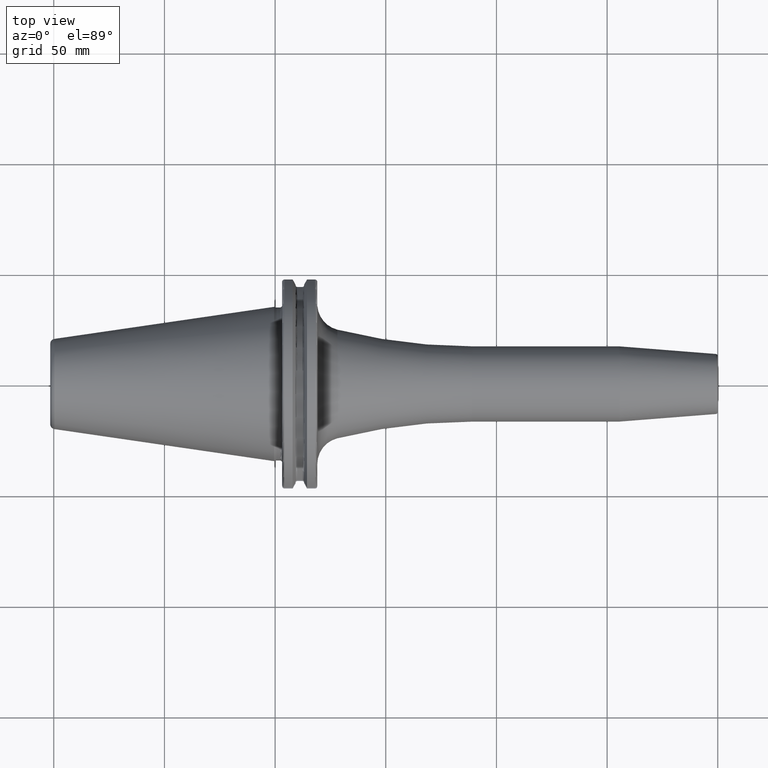
[diagram: clean part render]
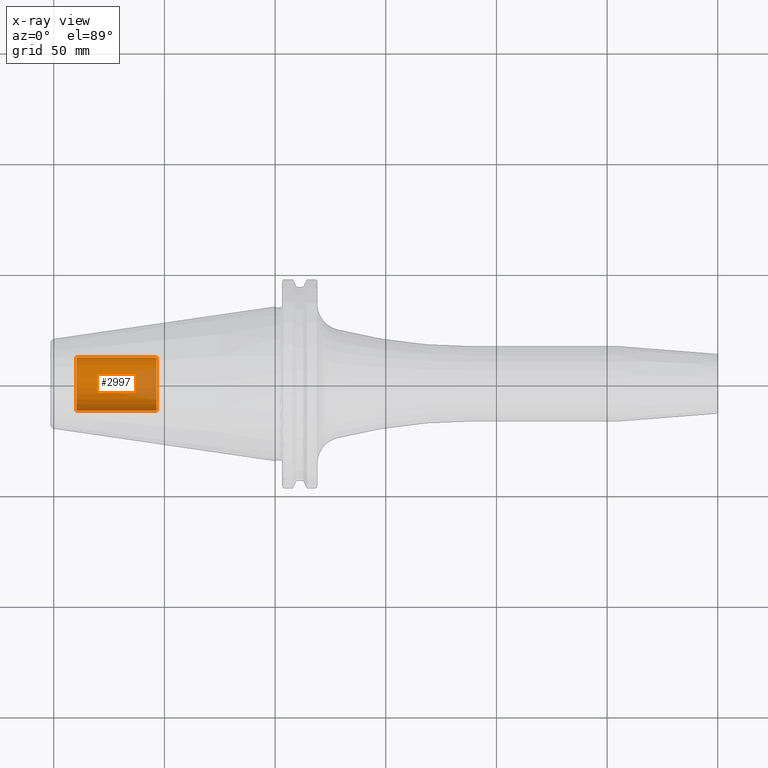
[diagram: x-ray — body ghosted, one internal face saturated and labeled with its STEP entity id]
A machine part, top view, then the same camera in x-ray: the body is ghosted and one INTERNAL B-rep face — a face not visible from any outside direction — is saturated and labeled: STEP entity #2997.
In plain terms, the highlighted cylindrical surface (edge-blend (fillet) strip) has radius 12.0032 mm, axis along (1, 0, 0).
Its self-contained STEP definition (entity closure, byte-faithful):
#2932=CARTESIAN_POINT('',(-8.985E1,0.E0,0.E0));
#2933=DIRECTION('',(-1.E0,0.E0,0.E0));
#2934=DIRECTION('',(0.E0,1.E0,0.E0));
#2935=AXIS2_PLACEMENT_3D('',#2932,#2933,#2934);
#2937=DIRECTION('',(1.E0,0.E0,0.E0));
#2938=VECTOR('',#2937,3.625E1);
#2939=CARTESIAN_POINT('',(-8.985E1,-1.200325E1,0.E0));
#2940=LINE('',#2939,#2938);
#2946=DIRECTION('',(1.E0,0.E0,0.E0));
#2947=VECTOR('',#2946,3.625E1);
#2948=CARTESIAN_POINT('',(-8.985E1,1.200325E1,0.E0));
#2949=LINE('',#2948,#2947);
#2955=CARTESIAN_POINT('',(-5.36E1,0.E0,0.E0));
#2956=DIRECTION('',(1.E0,0.E0,0.E0));
#2957=DIRECTION('',(0.E0,-1.E0,0.E0));
#2958=AXIS2_PLACEMENT_3D('',#2955,#2956,#2957);
#2970=CARTESIAN_POINT('',(-8.985E1,1.200325E1,0.E0));
#2971=CARTESIAN_POINT('',(-8.985E1,-1.200325E1,0.E0));
#2972=VERTEX_POINT('',#2970);
#2973=VERTEX_POINT('',#2971);
#2974=CARTESIAN_POINT('',(-5.36E1,1.200325E1,0.E0));
#2975=CARTESIAN_POINT('',(-5.36E1,-1.200325E1,0.E0));
#2976=VERTEX_POINT('',#2974);
#2977=VERTEX_POINT('',#2975);
#2982=CARTESIAN_POINT('',(-8.985E1,0.E0,0.E0));
#2983=DIRECTION('',(1.E0,0.E0,0.E0));
#2984=DIRECTION('',(0.E0,1.E0,0.E0));
#2985=AXIS2_PLACEMENT_3D('',#2982,#2983,#2984);
#2986=CYLINDRICAL_SURFACE('',#2985,1.200325E1);
#2988=ORIENTED_EDGE('',*,*,#2987,.T.);
#2990=ORIENTED_EDGE('',*,*,#2989,.T.);
#2992=ORIENTED_EDGE('',*,*,#2991,.T.);
#2994=ORIENTED_EDGE('',*,*,#2993,.F.);
#2995=EDGE_LOOP('',(#2988,#2990,#2992,#2994));
#2996=FACE_OUTER_BOUND('',#2995,.F.);
#2997=ADVANCED_FACE('',(#2996),#2986,.T.);
#2936=CIRCLE('',#2935,1.200325E1);
#2959=CIRCLE('',#2958,1.200325E1);
#2987=EDGE_CURVE('',#2972,#2973,#2936,.T.);
#2989=EDGE_CURVE('',#2973,#2977,#2940,.T.);
#2991=EDGE_CURVE('',#2977,#2976,#2959,.T.);
#2993=EDGE_CURVE('',#2972,#2976,#2949,.T.);